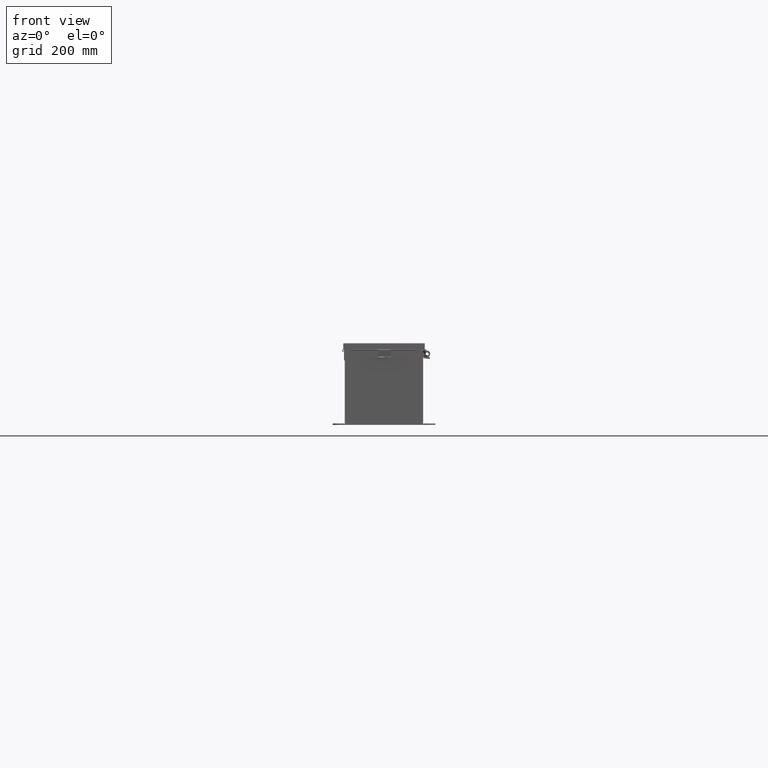
[diagram: clean part render]
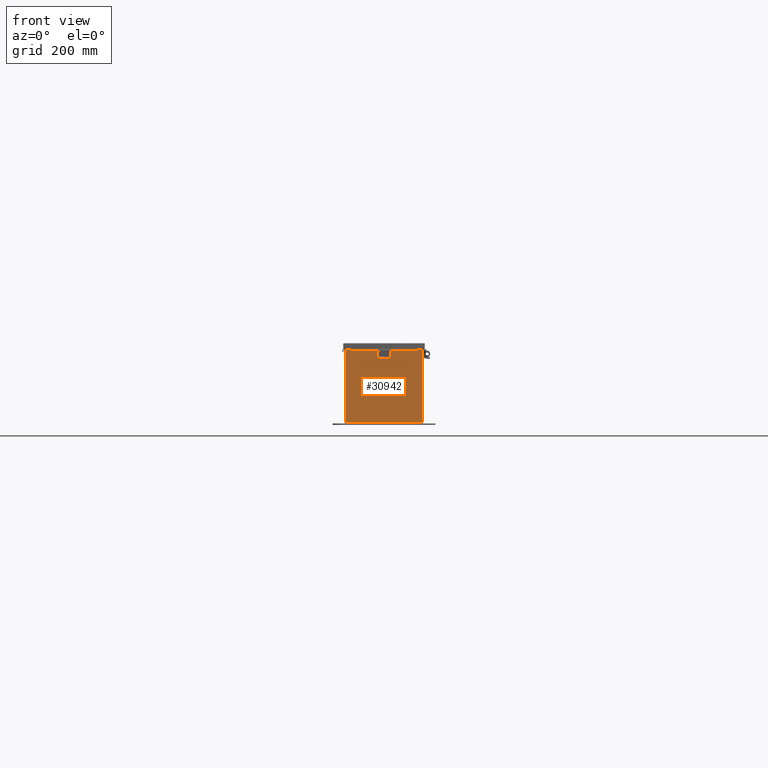
[diagram: same view with one face highlighted and labeled with its STEP entity id]
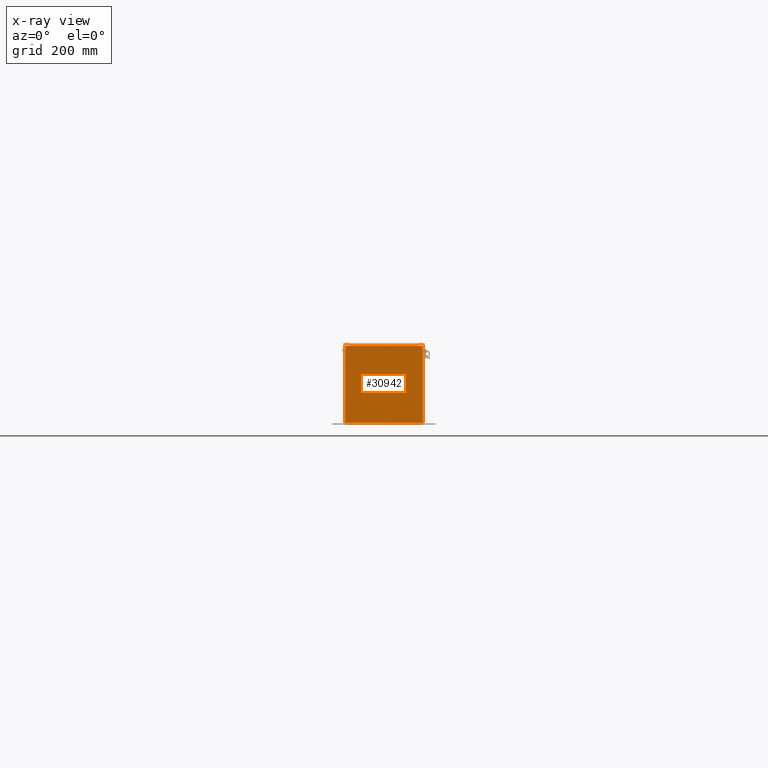
[diagram: x-ray of the same camera — body ghosted, the highlighted face saturated]
A machine part, front view. The second image highlights one B-rep face of the part: STEP entity #30942.
The next image is the same camera in x-ray: the body ghosted, the highlighted face saturated — about 0% of this face is hidden behind the body in this view.
In plain terms, the highlighted planar face has unit normal (-0, 1, -0).
Its self-contained STEP definition (entity closure, byte-faithful):
#109 = VERTEX_POINT ( 'NONE', #39103 ) ;
#322 = DIRECTION ( 'NONE',  ( 1.477079791840433000E-030, 1.000000000000000000, -0.0000000000000000000 ) ) ;
#395 = LINE ( 'NONE', #25803, #9653 ) ;
#1033 = VERTEX_POINT ( 'NONE', #28861 ) ;
#1267 = DIRECTION ( 'NONE',  ( 1.477079791840433000E-030, 1.000000000000000000, -0.0000000000000000000 ) ) ;
#1402 = DIRECTION ( 'NONE',  ( 0.0000000000000000000, 0.0000000000000000000, -1.000000000000000000 ) ) ;
#1498 = CARTESIAN_POINT ( 'NONE',  ( 3.619650000000000500, -1.049029629567077100E-013, 3.925300000000001800 ) ) ;
#1517 = VECTOR ( 'NONE', #9029, 39.37007874015748100 ) ;
#3221 = CARTESIAN_POINT ( 'NONE',  ( -3.925300000000000500, 0.0000000000000000000, -3.925299999999999600 ) ) ;
#3660 = LINE ( 'NONE', #19282, #12910 ) ;
#3998 = EDGE_CURVE ( 'NONE', #109, #34447, #18098, .T. ) ;
#4060 = ORIENTED_EDGE ( 'NONE', *, *, #43050, .F. ) ;
#4125 = AXIS2_PLACEMENT_3D ( 'NONE', #14178, #41510, #18103 ) ;
#4389 = CARTESIAN_POINT ( 'NONE',  ( 3.925299999999999100, 0.0000000000000000000, -3.925299999999986700 ) ) ;
#6227 = VERTEX_POINT ( 'NONE', #26159 ) ;
#6244 = DIRECTION ( 'NONE',  ( 0.0000000000000000000, 0.0000000000000000000, 1.000000000000000000 ) ) ;
#6393 = CARTESIAN_POINT ( 'NONE',  ( 3.619650000000012500, -1.049029629567077100E-013, 3.874950000000000600 ) ) ;
#7212 = ORIENTED_EDGE ( 'NONE', *, *, #8672, .F. ) ;
#7565 = LINE ( 'NONE', #22379, #15619 ) ;
#7909 = LINE ( 'NONE', #16070, #39212 ) ;
#8110 = DIRECTION ( 'NONE',  ( 1.000000000000000000, 1.477079791840433000E-030, 0.0000000000000000000 ) ) ;
#8380 = CIRCLE ( 'NONE', #21088, 0.01867500000000003900 ) ;
#8533 = CARTESIAN_POINT ( 'NONE',  ( -3.925300000000000500, -1.049029629567077100E-013, 3.925300000000001800 ) ) ;
#8672 = EDGE_CURVE ( 'NONE', #9037, #23772, #395, .T. ) ;
#8805 = VECTOR ( 'NONE', #25612, 39.37007874015748100 ) ;
#9029 = DIRECTION ( 'NONE',  ( 0.0000000000000000000, 0.0000000000000000000, 1.000000000000000000 ) ) ;
#9037 = VERTEX_POINT ( 'NONE', #40168 ) ;
#9650 = ORIENTED_EDGE ( 'NONE', *, *, #10229, .F. ) ;
#9653 = VECTOR ( 'NONE', #6244, 39.37007874015748100 ) ;
#9750 = CIRCLE ( 'NONE', #50048, 0.01867500000000003900 ) ;
#10175 = PLANE ( 'NONE',  #4125 ) ;
#10229 = EDGE_CURVE ( 'NONE', #44803, #1033, #9750, .T. ) ;
#11934 = ORIENTED_EDGE ( 'NONE', *, *, #48442, .T. ) ;
#12601 = ORIENTED_EDGE ( 'NONE', *, *, #48820, .T. ) ;
#12910 = VECTOR ( 'NONE', #23184, 39.37007874015748100 ) ;
#14178 = CARTESIAN_POINT ( 'NONE',  ( 0.0000000000000000000, 0.0000000000000000000, 0.0000000000000000000 ) ) ;
#15619 = VECTOR ( 'NONE', #41855, 39.37007874015748100 ) ;
#15628 = CARTESIAN_POINT ( 'NONE',  ( -3.925300000000000500, -1.049029629567077100E-013, 3.925300000000001800 ) ) ;
#16070 = CARTESIAN_POINT ( 'NONE',  ( -3.925300000000000500, -1.049029629567077100E-013, 3.925300000000001800 ) ) ;
#18098 = LINE ( 'NONE', #21029, #37675 ) ;
#18103 = DIRECTION ( 'NONE',  ( 0.0000000000000000000, 0.0000000000000000000, -1.000000000000000000 ) ) ;
#18360 = CARTESIAN_POINT ( 'NONE',  ( -3.925300000000000500, 0.0000000000000000000, -3.925299999999999600 ) ) ;
#19282 = CARTESIAN_POINT ( 'NONE',  ( 3.582299999999999200, 0.0000000000000000000, 1.311287036958846300E-014 ) ) ;
#19621 = LINE ( 'NONE', #3221, #29990 ) ;
#20534 = LINE ( 'NONE', #33489, #8805 ) ;
#20746 = VERTEX_POINT ( 'NONE', #18360 ) ;
#21029 = CARTESIAN_POINT ( 'NONE',  ( -3.582300000000000000, 0.0000000000000000000, 0.0000000000000000000 ) ) ;
#21088 = AXIS2_PLACEMENT_3D ( 'NONE', #23858, #322, #27809 ) ;
#22379 = CARTESIAN_POINT ( 'NONE',  ( 3.619649999999915200, 0.0000000000000000000, -6.556435184794231400E-014 ) ) ;
#23184 = DIRECTION ( 'NONE',  ( 0.0000000000000000000, 0.0000000000000000000, 1.000000000000000000 ) ) ;
#23246 = LINE ( 'NONE', #41493, #42836 ) ;
#23772 = VERTEX_POINT ( 'NONE', #33668 ) ;
#23858 = CARTESIAN_POINT ( 'NONE',  ( -3.600974999999987200, -1.049029629567077100E-013, 3.874950000000001900 ) ) ;
#24079 = EDGE_CURVE ( 'NONE', #1033, #48070, #3660, .T. ) ;
#24603 = EDGE_CURVE ( 'NONE', #24804, #20746, #19621, .T. ) ;
#24799 = CARTESIAN_POINT ( 'NONE',  ( 3.600975000000012500, -1.049029629567077100E-013, 3.874950000000000600 ) ) ;
#24804 = VERTEX_POINT ( 'NONE', #4389 ) ;
#25612 = DIRECTION ( 'NONE',  ( 1.000000000000000000, 1.477079791840433000E-030, -0.0000000000000000000 ) ) ;
#25803 = CARTESIAN_POINT ( 'NONE',  ( -3.619650000000000500, 0.0000000000000000000, 0.0000000000000000000 ) ) ;
#25888 = EDGE_CURVE ( 'NONE', #34447, #9037, #8380, .T. ) ;
#25902 = VECTOR ( 'NONE', #43817, 39.37007874015748100 ) ;
#26159 = CARTESIAN_POINT ( 'NONE',  ( 3.925299999999999100, -1.049029629567077100E-013, 3.925300000000000900 ) ) ;
#26208 = ORIENTED_EDGE ( 'NONE', *, *, #25888, .F. ) ;
#27809 = DIRECTION ( 'NONE',  ( 0.0000000000000000000, 0.0000000000000000000, -1.000000000000000000 ) ) ;
#28571 = VERTEX_POINT ( 'NONE', #1498 ) ;
#28743 = DIRECTION ( 'NONE',  ( 0.0000000000000000000, 0.0000000000000000000, -1.000000000000000000 ) ) ;
#28861 = CARTESIAN_POINT ( 'NONE',  ( 3.582300000000012000, -1.049029629567077100E-013, 3.874950000000000600 ) ) ;
#29990 = VECTOR ( 'NONE', #42292, 39.37007874015748100 ) ;
#30942 = ADVANCED_FACE ( 'NONE', ( #50346 ), #10175, .F. ) ;
#33018 = CARTESIAN_POINT ( 'NONE',  ( 3.582299999999999200, -1.049029629567077100E-013, 3.912300000000001900 ) ) ;
#33489 = CARTESIAN_POINT ( 'NONE',  ( -3.582300000000000000, -1.005320061668448800E-013, 3.912300000000000600 ) ) ;
#33668 = CARTESIAN_POINT ( 'NONE',  ( -3.619650000000000500, -1.049029629567077100E-013, 3.925300000000000900 ) ) ;
#34447 = VERTEX_POINT ( 'NONE', #47906 ) ;
#34479 = EDGE_CURVE ( 'NONE', #20746, #39836, #43231, .T. ) ;
#36312 = LINE ( 'NONE', #8533, #25902 ) ;
#36423 = ORIENTED_EDGE ( 'NONE', *, *, #24603, .T. ) ;
#36691 = ORIENTED_EDGE ( 'NONE', *, *, #3998, .F. ) ;
#37675 = VECTOR ( 'NONE', #1402, 39.37007874015748100 ) ;
#39103 = CARTESIAN_POINT ( 'NONE',  ( -3.582300000000000000, -1.005320061668448800E-013, 3.912300000000000600 ) ) ;
#39212 = VECTOR ( 'NONE', #8110, 39.37007874015748100 ) ;
#39836 = VERTEX_POINT ( 'NONE', #15628 ) ;
#39855 = ORIENTED_EDGE ( 'NONE', *, *, #24079, .F. ) ;
#40168 = CARTESIAN_POINT ( 'NONE',  ( -3.619649999999987200, -1.049029629567077100E-013, 3.874950000000001900 ) ) ;
#41493 = CARTESIAN_POINT ( 'NONE',  ( 3.925299999999999100, -1.049029629567077100E-013, 3.925300000000000900 ) ) ;
#41510 = DIRECTION ( 'NONE',  ( -1.477079791840433000E-030, -1.000000000000000000, -0.0000000000000000000 ) ) ;
#41855 = DIRECTION ( 'NONE',  ( -2.170286390199978800E-014, -2.366582715663035400E-030, -1.000000000000000000 ) ) ;
#42292 = DIRECTION ( 'NONE',  ( -1.000000000000000000, -1.477079791840433000E-030, 0.0000000000000000000 ) ) ;
#42326 = ORIENTED_EDGE ( 'NONE', *, *, #43922, .T. ) ;
#42836 = VECTOR ( 'NONE', #45398, 39.37007874015748100 ) ;
#42951 = EDGE_CURVE ( 'NONE', #109, #48070, #20534, .T. ) ;
#43050 = EDGE_CURVE ( 'NONE', #28571, #44803, #7565, .T. ) ;
#43231 = LINE ( 'NONE', #48084, #1517 ) ;
#43817 = DIRECTION ( 'NONE',  ( 1.000000000000000000, 1.477079791840433000E-030, 0.0000000000000000000 ) ) ;
#43922 = EDGE_CURVE ( 'NONE', #39836, #23772, #36312, .T. ) ;
#43947 = EDGE_LOOP ( 'NONE', ( #7212, #26208, #36691, #45895, #39855, #9650, #4060, #11934, #12601, #36423, #44849, #42326 ) ) ;
#44803 = VERTEX_POINT ( 'NONE', #6393 ) ;
#44849 = ORIENTED_EDGE ( 'NONE', *, *, #34479, .T. ) ;
#45398 = DIRECTION ( 'NONE',  ( 0.0000000000000000000, 0.0000000000000000000, -1.000000000000000000 ) ) ;
#45895 = ORIENTED_EDGE ( 'NONE', *, *, #42951, .T. ) ;
#47906 = CARTESIAN_POINT ( 'NONE',  ( -3.582299999999987200, -1.049029629567077100E-013, 3.874950000000001900 ) ) ;
#48070 = VERTEX_POINT ( 'NONE', #33018 ) ;
#48084 = CARTESIAN_POINT ( 'NONE',  ( -3.925300000000000500, -1.049029629567077100E-013, 3.925300000000001800 ) ) ;
#48442 = EDGE_CURVE ( 'NONE', #28571, #6227, #7909, .T. ) ;
#48820 = EDGE_CURVE ( 'NONE', #6227, #24804, #23246, .T. ) ;
#50048 = AXIS2_PLACEMENT_3D ( 'NONE', #24799, #1267, #28743 ) ;
#50346 = FACE_OUTER_BOUND ( 'NONE', #43947, .T. ) ;